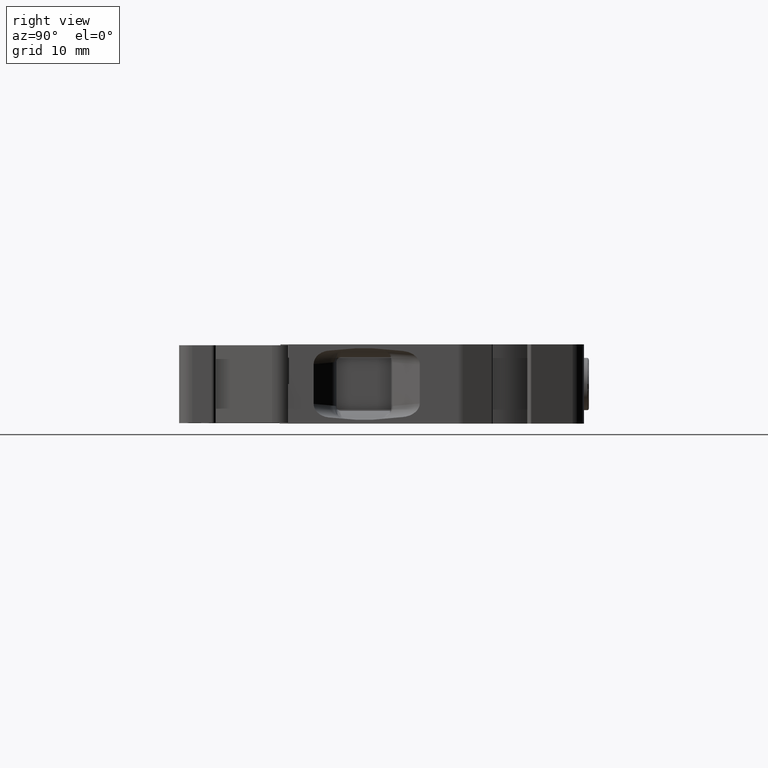
[diagram: clean part render]
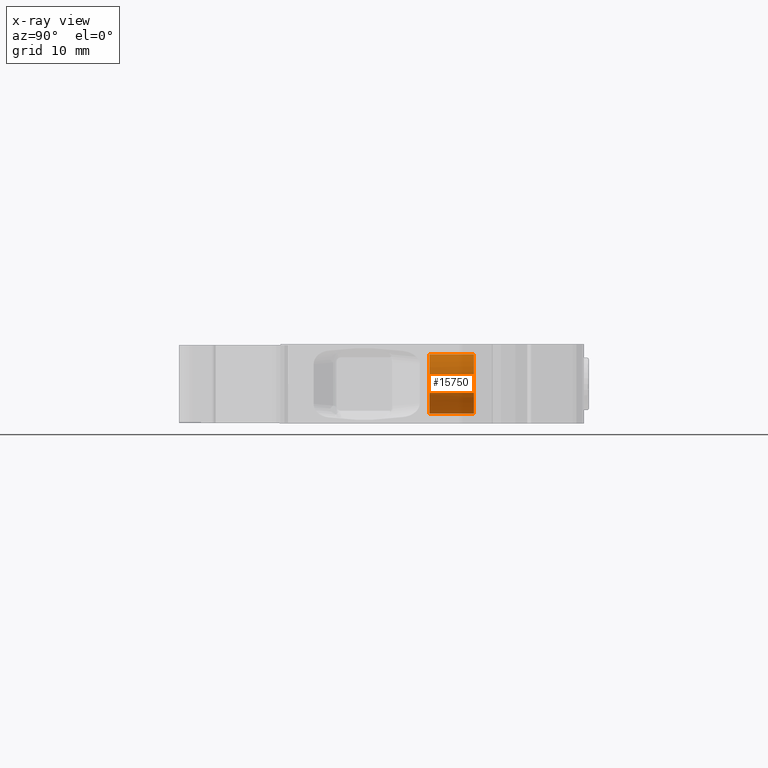
[diagram: x-ray — body ghosted, one internal face saturated and labeled with its STEP entity id]
A machine part, right view, then the same camera in x-ray: the body is ghosted and one INTERNAL B-rep face — a face not visible from any outside direction — is saturated and labeled: STEP entity #15750.
In plain terms, the highlighted cylindrical surface (edge-blend (fillet) strip) has radius 3.4 mm, axis along (0, -1, 0).
Its self-contained STEP definition (entity closure, byte-faithful):
#1589 = AXIS2_PLACEMENT_3D ( 'NONE', #2582, #2572, #2590 ) ;
#2572 = DIRECTION ( 'NONE',  ( 0.0000000000000000000, -1.000000000000000000, 0.0000000000000000000 ) ) ;
#2582 = CARTESIAN_POINT ( 'NONE',  ( 475.9752094327940300, 115.3878730676890300, 31.39999999999999900 ) ) ;
#2584 = FACE_OUTER_BOUND ( 'NONE', #6054, .T. ) ;
#2590 = DIRECTION ( 'NONE',  ( 0.0000000000000000000, 0.0000000000000000000, -1.000000000000000000 ) ) ;
#2595 = CYLINDRICAL_SURFACE ( 'NONE', #1589, 3.400000000000100700 ) ;
#3425 = EDGE_CURVE ( 'NONE', #4255, #4266, #11358, .T. ) ;
#3444 = EDGE_CURVE ( 'NONE', #4205, #4162, #13007, .T. ) ;
#3459 = EDGE_CURVE ( 'NONE', #4162, #4266, #14932, .T. ) ;
#3604 = EDGE_CURVE ( 'NONE', #4205, #4255, #10184, .T. ) ;
#4162 = VERTEX_POINT ( 'NONE', #10829 ) ;
#4205 = VERTEX_POINT ( 'NONE', #10885 ) ;
#4255 = VERTEX_POINT ( 'NONE', #10941 ) ;
#4266 = VERTEX_POINT ( 'NONE', #10945 ) ;
#4571 = ORIENTED_EDGE ( 'NONE', *, *, #3604, .F. ) ;
#4593 = ORIENTED_EDGE ( 'NONE', *, *, #3444, .T. ) ;
#4608 = ORIENTED_EDGE ( 'NONE', *, *, #3425, .F. ) ;
#4621 = ORIENTED_EDGE ( 'NONE', *, *, #3459, .T. ) ;
#6054 = EDGE_LOOP ( 'NONE', ( #4593, #4621, #4608, #4571 ) ) ;
#10184 = LINE ( 'NONE', #10214, #11451 ) ;
#10207 = DIRECTION ( 'NONE',  ( 0.0000000000000000000, -1.000000000000000000, 0.0000000000000000000 ) ) ;
#10214 = CARTESIAN_POINT ( 'NONE',  ( 475.9752094327940300, 115.3878730676890300, 27.99999999999989700 ) ) ;
#10829 = CARTESIAN_POINT ( 'NONE',  ( 475.9752094327939700, 130.8878730676889900, 34.80000000000009700 ) ) ;
#10885 = CARTESIAN_POINT ( 'NONE',  ( 475.9752094327939700, 130.8878730676889900, 27.99999999999989700 ) ) ;
#10941 = CARTESIAN_POINT ( 'NONE',  ( 475.9752094327940300, 125.7878730676891800, 27.99999999999990100 ) ) ;
#10945 = CARTESIAN_POINT ( 'NONE',  ( 475.9752094327940300, 125.7878730676891800, 34.80000000000009700 ) ) ;
#11358 = CIRCLE ( 'NONE', #11359, 3.400000000000097200 ) ;
#11359 = AXIS2_PLACEMENT_3D ( 'NONE', #14716, #14732, #14799 ) ;
#11365 = VECTOR ( 'NONE', #14970, 1000.000000000000000 ) ;
#11451 = VECTOR ( 'NONE', #10207, 1000.000000000000000 ) ;
#13007 = B_SPLINE_CURVE_WITH_KNOTS ( 'NONE', 3,
 ( #14854, #14839, #14875, #14923, #14887, #14915, #14920, #14934, #14901, #14921, #14908, #14910, #14896, #14885, #14933, #14922, #14929, #14906 ),
 .UNSPECIFIED., .F., .F.,
 ( 4, 2, 2, 2, 2, 2, 2, 2, 4 ),
 ( 0.0000000000000000000, 0.1249999999999995000, 0.2499999999999990000, 0.3749999999999985000, 0.4999999999999980000, 0.6249999999999984500, 0.7499999999999990000, 0.8749999999999994400, 1.000000000000000000 ),
 .UNSPECIFIED. ) ;
#14716 = CARTESIAN_POINT ( 'NONE',  ( 475.9752094327940300, 125.7878730676891800, 31.39999999999999900 ) ) ;
#14732 = DIRECTION ( 'NONE',  ( -0.0000000000000000000, -1.000000000000000000, 0.0000000000000000000 ) ) ;
#14799 = DIRECTION ( 'NONE',  ( 0.0000000000000000000, 0.0000000000000000000, -1.000000000000000000 ) ) ;
#14839 = CARTESIAN_POINT ( 'NONE',  ( 476.4202683920526100, 130.8878730676890100, 27.99999999999990100 ) ) ;
#14854 = CARTESIAN_POINT ( 'NONE',  ( 475.9752094327939700, 130.8878730676889900, 27.99999999999989700 ) ) ;
#14875 = CARTESIAN_POINT ( 'NONE',  ( 476.8651522396155500, 130.8878730676889600, 28.08849289932761900 ) ) ;
#14885 = CARTESIAN_POINT ( 'NONE',  ( 478.0646682807087600, 130.8878730676889900, 34.11886726415392000 ) ) ;
#14887 = CARTESIAN_POINT ( 'NONE',  ( 478.0646682807088700, 130.8878730676889900, 28.68113273584611300 ) ) ;
#14896 = CARTESIAN_POINT ( 'NONE',  ( 478.6940766969479500, 130.8878730676890100, 33.48945884791480400 ) ) ;
#14901 = CARTESIAN_POINT ( 'NONE',  ( 479.3752094327942900, 130.8878730676890100, 30.95494104074146000 ) ) ;
#14906 = CARTESIAN_POINT ( 'NONE',  ( 475.9752094327939700, 130.8878730676889900, 34.80000000000009700 ) ) ;
#14908 = CARTESIAN_POINT ( 'NONE',  ( 479.2867165334663500, 130.8878730676889900, 32.28994280682160700 ) ) ;
#14910 = CARTESIAN_POINT ( 'NONE',  ( 478.9460831531986900, 130.8878730676889900, 33.11230453326113100 ) ) ;
#14915 = CARTESIAN_POINT ( 'NONE',  ( 478.6940766969478300, 130.8878730676889900, 29.31054115208522900 ) ) ;
#14920 = CARTESIAN_POINT ( 'NONE',  ( 478.9460831531985700, 130.8878730676889900, 29.68769546673890500 ) ) ;
#14921 = CARTESIAN_POINT ( 'NONE',  ( 479.3752094327941200, 130.8878730676889900, 31.84505895925860500 ) ) ;
#14922 = CARTESIAN_POINT ( 'NONE',  ( 476.8651522396156100, 130.8878730676890400, 34.71150710067239900 ) ) ;
#14923 = CARTESIAN_POINT ( 'NONE',  ( 477.6875139660550600, 130.8878730676889600, 28.42912627959543300 ) ) ;
#14929 = CARTESIAN_POINT ( 'NONE',  ( 476.4202683920527200, 130.8878730676890100, 34.80000000000011100 ) ) ;
#14932 = LINE ( 'NONE', #14948, #11365 ) ;
#14933 = CARTESIAN_POINT ( 'NONE',  ( 477.6875139660551200, 130.8878730676889900, 34.37087372040459600 ) ) ;
#14934 = CARTESIAN_POINT ( 'NONE',  ( 479.2867165334663500, 130.8878730676889900, 30.51005719317844000 ) ) ;
#14948 = CARTESIAN_POINT ( 'NONE',  ( 475.9752094327940300, 115.3878730676890300, 34.80000000000009700 ) ) ;
#14970 = DIRECTION ( 'NONE',  ( 0.0000000000000000000, -1.000000000000000000, 0.0000000000000000000 ) ) ;
#15750 = ADVANCED_FACE ( 'NONE', ( #2584 ), #2595, .T. ) ;